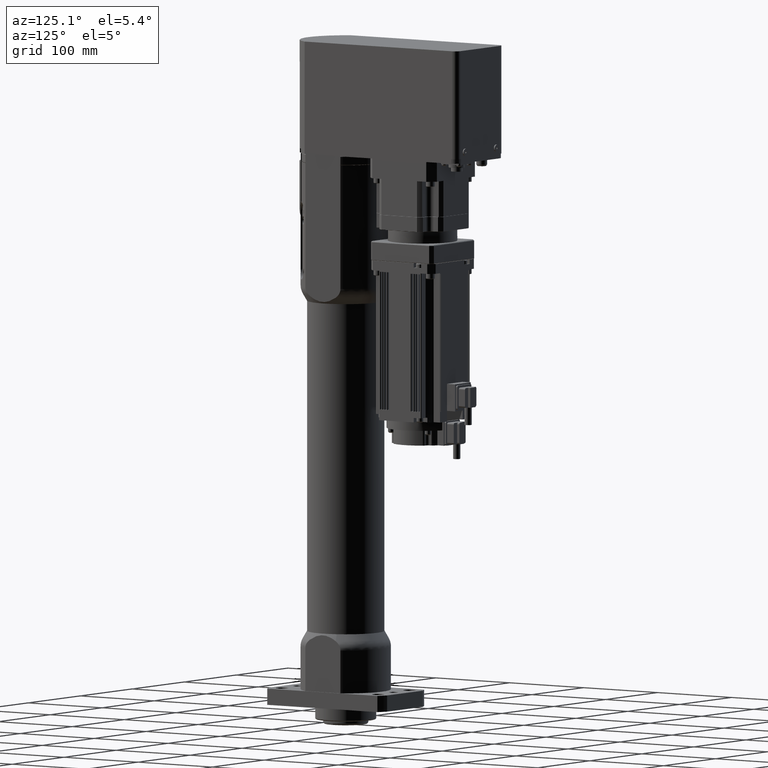
[diagram: clean part render]
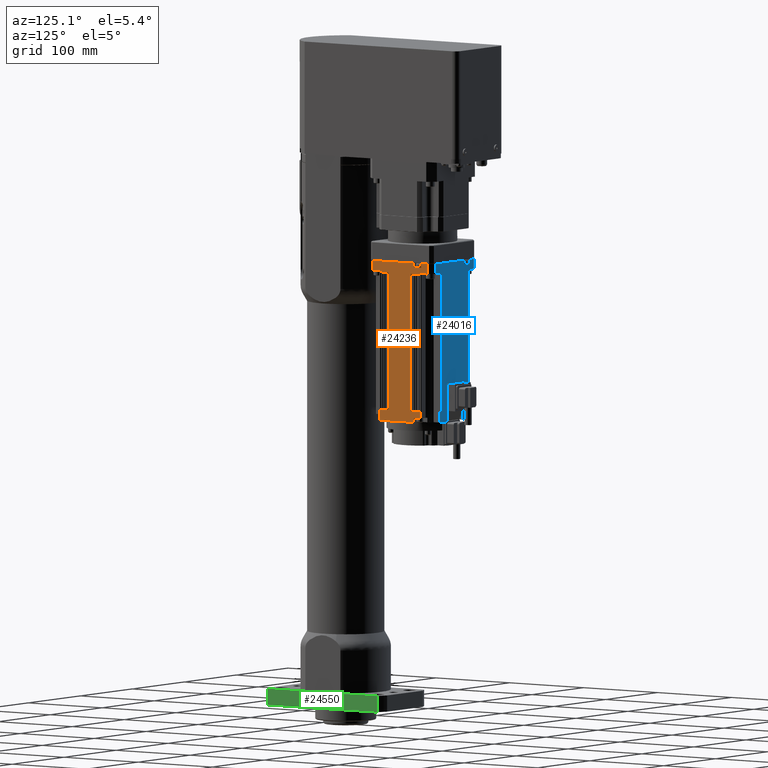
[diagram: same view with three faces highlighted in distinct colors, each labeled with its STEP entity id]
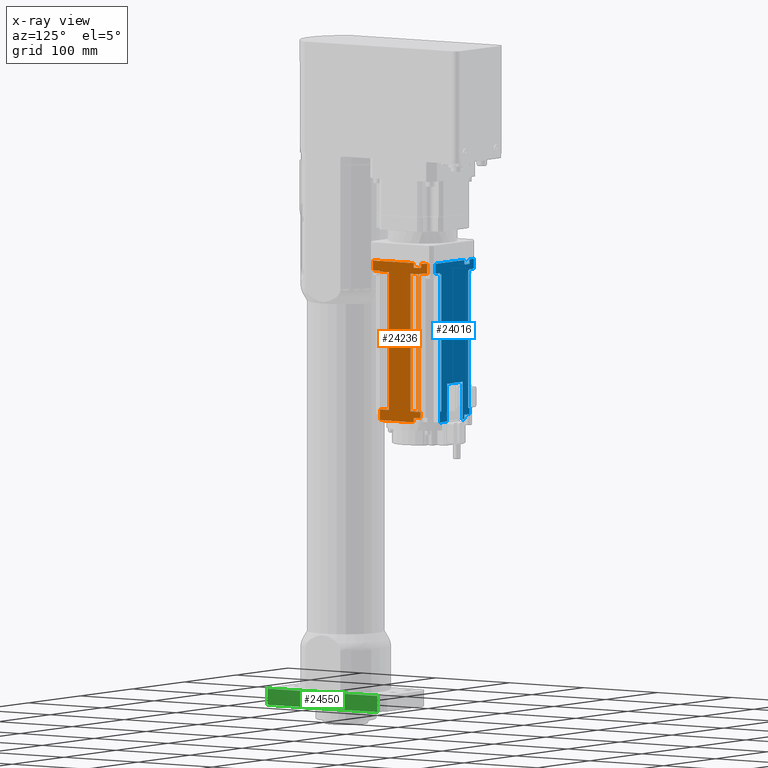
[diagram: x-ray of the same camera — body ghosted, the three highlighted faces saturated]
A machine part, auxiliary view with three faces highlighted in distinct colors.
The next image is the same camera in x-ray (body ghosted, the three faces saturated) — at least one of them is partly hidden behind the body in this view.
Their STEP definitions:

[orange] entity #24236 — the highlighted planar face has unit normal (1, -0, -0).
#915=LINE('',#36147,#2670);
#933=LINE('',#36230,#2688);
#1196=LINE('',#37584,#2951);
#1199=LINE('',#37592,#2954);
#1202=LINE('',#37601,#2957);
#1204=LINE('',#37607,#2959);
#1207=LINE('',#37612,#2962);
#1261=LINE('',#37738,#3016);
#1272=LINE('',#37766,#3027);
#1276=LINE('',#37774,#3031);
#1284=LINE('',#37793,#3039);
#1287=LINE('',#37806,#3042);
#1292=LINE('',#37822,#3047);
#1299=LINE('',#37838,#3054);
#1308=LINE('',#37860,#3063);
#1316=LINE('',#37877,#3071);
#1426=LINE('',#38163,#3181);
#1428=LINE('',#38170,#3183);
#1431=LINE('',#38179,#3186);
#1433=LINE('',#38188,#3188);
#1435=LINE('',#38194,#3190);
#1470=LINE('',#38312,#3225);
#1485=LINE('',#38367,#3240);
#1780=LINE('',#39332,#3535);
#1781=LINE('',#39335,#3536);
#1783=LINE('',#39339,#3538);
#1792=LINE('',#39362,#3547);
#1795=LINE('',#39371,#3550);
#1801=LINE('',#39385,#3556);
#1808=LINE('',#39406,#3563);
#1811=LINE('',#39412,#3566);
#1812=LINE('',#39414,#3567);
#1813=LINE('',#39415,#3568);
#1814=LINE('',#39416,#3569);
#1815=LINE('',#39418,#3570);
#1816=LINE('',#39419,#3571);
#2670=VECTOR('',#28651,10.);
#2688=VECTOR('',#28711,10.);
#2951=VECTOR('',#29900,10.);
#2954=VECTOR('',#29909,10.);
#2957=VECTOR('',#29916,10.);
#2959=VECTOR('',#29922,10.);
#2962=VECTOR('',#29927,10.);
#3016=VECTOR('',#30035,10.);
#3027=VECTOR('',#30056,10.);
#3031=VECTOR('',#30064,10.);
#3039=VECTOR('',#30078,10.);
#3042=VECTOR('',#30091,10.);
#3047=VECTOR('',#30104,10.);
#3054=VECTOR('',#30119,10.);
#3063=VECTOR('',#30138,10.);
#3071=VECTOR('',#30152,10.);
#3181=VECTOR('',#30386,10.);
#3183=VECTOR('',#30392,10.);
#3186=VECTOR('',#30401,10.);
#3188=VECTOR('',#30411,10.);
#3190=VECTOR('',#30417,10.);
#3225=VECTOR('',#30534,10.);
#3240=VECTOR('',#30587,10.);
#3535=VECTOR('',#31620,10.);
#3536=VECTOR('',#31623,10.);
#3538=VECTOR('',#31627,10.);
#3547=VECTOR('',#31658,10.);
#3550=VECTOR('',#31669,10.);
#3556=VECTOR('',#31689,10.);
#3563=VECTOR('',#31716,10.);
#3566=VECTOR('',#31725,10.);
#3567=VECTOR('',#31728,10.);
#3568=VECTOR('',#31729,10.);
#3569=VECTOR('',#31730,10.);
#3570=VECTOR('',#31731,10.);
#3571=VECTOR('',#31732,10.);
#4606=PLANE('',#26435);
#5085=FACE_BOUND('',#7620,.T.);
#6090=FACE_OUTER_BOUND('',#7619,.T.);
#7619=EDGE_LOOP('',(#18892,#18893,#18894,#18895,#18896,#18897,#18898,#18899,
#18900,#18901,#18902,#18903,#18904,#18905,#18906,#18907,#18908,#18909,#18910,
#18911,#18912,#18913,#18914,#18915,#18916,#18917,#18918,#18919));
#7620=EDGE_LOOP('',(#18920,#18921,#18922,#18923,#18924,#18925,#18926,#18927));
#10014=VERTEX_POINT('',#36144);
#10015=VERTEX_POINT('',#36146);
#10040=VERTEX_POINT('',#36227);
#10041=VERTEX_POINT('',#36229);
#10376=VERTEX_POINT('',#37582);
#10377=VERTEX_POINT('',#37587);
#10380=VERTEX_POINT('',#37595);
#10382=VERTEX_POINT('',#37599);
#10384=VERTEX_POINT('',#37606);
#10385=VERTEX_POINT('',#37610);
#10429=VERTEX_POINT('',#37736);
#10430=VERTEX_POINT('',#37737);
#10441=VERTEX_POINT('',#37764);
#10442=VERTEX_POINT('',#37765);
#10444=VERTEX_POINT('',#37772);
#10451=VERTEX_POINT('',#37791);
#10452=VERTEX_POINT('',#37792);
#10457=VERTEX_POINT('',#37804);
#10464=VERTEX_POINT('',#37821);
#10469=VERTEX_POINT('',#37837);
#10477=VERTEX_POINT('',#37859);
#10483=VERTEX_POINT('',#37875);
#10597=VERTEX_POINT('',#38161);
#10599=VERTEX_POINT('',#38167);
#10600=VERTEX_POINT('',#38169);
#10603=VERTEX_POINT('',#38178);
#10606=VERTEX_POINT('',#38187);
#10608=VERTEX_POINT('',#38193);
#10649=VERTEX_POINT('',#38309);
#10650=VERTEX_POINT('',#38311);
#10670=VERTEX_POINT('',#38364);
#10671=VERTEX_POINT('',#38366);
#10932=VERTEX_POINT('',#39330);
#10933=VERTEX_POINT('',#39334);
#10944=VERTEX_POINT('',#39404);
#10945=VERTEX_POINT('',#39417);
#12375=EDGE_CURVE('',#10014,#10015,#915,.T.);
#12409=EDGE_CURVE('',#10040,#10041,#933,.T.);
#12945=EDGE_CURVE('',#10376,#10040,#1196,.T.);
#12950=EDGE_CURVE('',#10377,#10015,#1199,.T.);
#12954=EDGE_CURVE('',#10380,#10382,#1202,.T.);
#12957=EDGE_CURVE('',#10384,#10380,#1204,.T.);
#12960=EDGE_CURVE('',#10382,#10385,#1207,.T.);
#13020=EDGE_CURVE('',#10429,#10430,#1261,.T.);
#13033=EDGE_CURVE('',#10441,#10442,#1272,.T.);
#13038=EDGE_CURVE('',#10444,#10442,#1276,.T.);
#13046=EDGE_CURVE('',#10451,#10452,#1284,.T.);
#13053=EDGE_CURVE('',#10452,#10457,#1287,.T.);
#13061=EDGE_CURVE('',#10451,#10464,#1292,.T.);
#13069=EDGE_CURVE('',#10469,#10429,#1299,.T.);
#13080=EDGE_CURVE('',#10457,#10477,#1308,.T.);
#13089=EDGE_CURVE('',#10477,#10483,#1316,.T.);
#13228=EDGE_CURVE('',#10597,#10483,#1426,.T.);
#13231=EDGE_CURVE('',#10599,#10600,#1428,.T.);
#13236=EDGE_CURVE('',#10600,#10603,#1431,.T.);
#13241=EDGE_CURVE('',#10603,#10606,#1433,.T.);
#13244=EDGE_CURVE('',#10444,#10608,#1435,.T.);
#13307=EDGE_CURVE('',#10649,#10650,#1470,.T.);
#13335=EDGE_CURVE('',#10671,#10670,#1485,.T.);
#13786=EDGE_CURVE('',#10671,#10932,#1780,.T.);
#13787=EDGE_CURVE('',#10932,#10933,#1781,.T.);
#13790=EDGE_CURVE('',#10464,#10014,#1783,.T.);
#13802=EDGE_CURVE('',#10933,#10649,#1792,.T.);
#13806=EDGE_CURVE('',#10650,#10597,#1795,.T.);
#13813=EDGE_CURVE('',#10430,#10599,#1801,.T.);
#13823=EDGE_CURVE('',#10944,#10469,#1808,.T.);
#13826=EDGE_CURVE('',#10606,#10944,#1811,.T.);
#13827=EDGE_CURVE('',#10041,#10441,#1812,.T.);
#13828=EDGE_CURVE('',#10376,#10384,#1813,.T.);
#13829=EDGE_CURVE('',#10385,#10377,#1814,.T.);
#13830=EDGE_CURVE('',#10670,#10945,#1815,.T.);
#13831=EDGE_CURVE('',#10608,#10945,#1816,.T.);
#18892=ORIENTED_EDGE('',*,*,#13244,.F.);
#18893=ORIENTED_EDGE('',*,*,#13038,.T.);
#18894=ORIENTED_EDGE('',*,*,#13033,.F.);
#18895=ORIENTED_EDGE('',*,*,#13827,.F.);
#18896=ORIENTED_EDGE('',*,*,#12409,.F.);
#18897=ORIENTED_EDGE('',*,*,#12945,.F.);
#18898=ORIENTED_EDGE('',*,*,#13828,.T.);
#18899=ORIENTED_EDGE('',*,*,#12957,.T.);
#18900=ORIENTED_EDGE('',*,*,#12954,.T.);
#18901=ORIENTED_EDGE('',*,*,#12960,.T.);
#18902=ORIENTED_EDGE('',*,*,#13829,.T.);
#18903=ORIENTED_EDGE('',*,*,#12950,.T.);
#18904=ORIENTED_EDGE('',*,*,#12375,.F.);
#18905=ORIENTED_EDGE('',*,*,#13790,.F.);
#18906=ORIENTED_EDGE('',*,*,#13061,.F.);
#18907=ORIENTED_EDGE('',*,*,#13046,.T.);
#18908=ORIENTED_EDGE('',*,*,#13053,.T.);
#18909=ORIENTED_EDGE('',*,*,#13080,.T.);
#18910=ORIENTED_EDGE('',*,*,#13089,.T.);
#18911=ORIENTED_EDGE('',*,*,#13228,.F.);
#18912=ORIENTED_EDGE('',*,*,#13806,.F.);
#18913=ORIENTED_EDGE('',*,*,#13307,.F.);
#18914=ORIENTED_EDGE('',*,*,#13802,.F.);
#18915=ORIENTED_EDGE('',*,*,#13787,.F.);
#18916=ORIENTED_EDGE('',*,*,#13786,.F.);
#18917=ORIENTED_EDGE('',*,*,#13335,.T.);
#18918=ORIENTED_EDGE('',*,*,#13830,.T.);
#18919=ORIENTED_EDGE('',*,*,#13831,.F.);
#18920=ORIENTED_EDGE('',*,*,#13241,.F.);
#18921=ORIENTED_EDGE('',*,*,#13236,.F.);
#18922=ORIENTED_EDGE('',*,*,#13231,.F.);
#18923=ORIENTED_EDGE('',*,*,#13813,.F.);
#18924=ORIENTED_EDGE('',*,*,#13020,.F.);
#18925=ORIENTED_EDGE('',*,*,#13069,.F.);
#18926=ORIENTED_EDGE('',*,*,#13823,.F.);
#18927=ORIENTED_EDGE('',*,*,#13826,.F.);
#24236=ADVANCED_FACE('',(#6090,#5085),#4606,.T.);
#26435=AXIS2_PLACEMENT_3D('',#39413,#31726,#31727);
#28651=DIRECTION('',(-3.96487638455236E-15,-1.,1.16659582020149E-14));
#28711=DIRECTION('',(-3.96487638455236E-15,-1.,1.16659582020149E-14));
#29900=DIRECTION('',(-1.83881657815785E-13,-1.16659582020141E-14,-1.));
#29909=DIRECTION('',(-1.83881657815785E-13,-1.16659582020141E-14,-1.));
#29916=DIRECTION('',(-3.96487638455236E-15,-1.,1.16659582020149E-14));
#29922=DIRECTION('',(-1.83881657815785E-13,-1.16659582020141E-14,-1.));
#29927=DIRECTION('',(1.83881657815785E-13,1.16659582020141E-14,1.));
#30035=DIRECTION('',(-3.96487638455236E-15,-1.,1.16659582020149E-14));
#30056=DIRECTION('',(-3.96487638455236E-15,-1.,1.16659582020149E-14));
#30064=DIRECTION('',(1.83881657815785E-13,1.18966538954427E-14,1.));
#30078=DIRECTION('',(3.96487638455236E-15,1.,-1.16659582020149E-14));
#30091=DIRECTION('',(3.96487638455236E-15,1.,-1.16659582020149E-14));
#30104=DIRECTION('',(-3.96487638455236E-15,-1.,1.16659582020149E-14));
#30119=DIRECTION('',(-3.96487638455236E-15,-1.,1.16659582020149E-14));
#30138=DIRECTION('',(3.96487638455236E-15,1.,-1.16659582020149E-14));
#30152=DIRECTION('',(-1.83881657815785E-13,-1.1406425546907E-14,-1.));
#30386=DIRECTION('',(3.96487638455236E-15,1.,-1.16659582020149E-14));
#30392=DIRECTION('',(3.96487638455236E-15,1.,-1.16659582020149E-14));
#30401=DIRECTION('',(3.96487638455236E-15,1.,-1.16659582020149E-14));
#30411=DIRECTION('',(3.96487638455236E-15,1.,-1.16659582020149E-14));
#30417=DIRECTION('',(3.96487638455236E-15,1.,-1.16659582020149E-14));
#30534=DIRECTION('',(3.96487638455236E-15,1.,-1.16659582020149E-14));
#30587=DIRECTION('',(1.83881657815785E-13,1.16659582020141E-14,1.));
#31620=DIRECTION('',(-4.10590053487842E-15,-1.,1.16659582020149E-14));
#31623=DIRECTION('',(1.83881657815785E-13,1.16659582020141E-14,1.));
#31627=DIRECTION('',(1.83881657815785E-13,1.16659582020141E-14,1.));
#31658=DIRECTION('',(3.96487638455236E-15,1.,-1.16659582020149E-14));
#31669=DIRECTION('',(3.96487638455236E-15,1.,-1.16659582020149E-14));
#31689=DIRECTION('',(-1.83881657815785E-13,-1.18966538954427E-14,-1.));
#31716=DIRECTION('',(-3.96487638455236E-15,-1.,1.16659582020149E-14));
#31725=DIRECTION('',(1.83881657815785E-13,1.18966538954427E-14,1.));
#31726=DIRECTION('center_axis',(1.,-3.96487638455451E-15,-1.83881657815785E-13));
#31727=DIRECTION('ref_axis',(-4.2632564145606E-15,-1.,1.13686837721616E-14));
#31728=DIRECTION('',(-1.83881657815785E-13,-1.16659582020141E-14,-1.));
#31729=DIRECTION('',(-3.96487638455236E-15,-1.,1.16659582020149E-14));
#31730=DIRECTION('',(-3.96487638455236E-15,-1.,1.16659582020149E-14));
#31731=DIRECTION('',(3.96487638455236E-15,1.,-1.16659582020149E-14));
#31732=DIRECTION('',(-1.83881657815785E-13,-1.16659582020141E-14,-1.));
#36144=CARTESIAN_POINT('',(43.5000000000818,76.5000000000073,490.499999999991));
#36146=CARTESIAN_POINT('',(43.5000000000818,67.1659125265813,490.499999999991));
#36147=CARTESIAN_POINT('',(43.500000000082,140.834087473433,490.49999999999));
#36227=CARTESIAN_POINT('',(43.500000000082,140.834087473433,490.49999999999));
#36229=CARTESIAN_POINT('',(43.500000000082,131.500000000007,490.49999999999));
#36230=CARTESIAN_POINT('',(43.500000000082,140.834087473433,490.49999999999));
#37582=CARTESIAN_POINT('',(43.5000000000841,140.834087473433,501.49999999999));
#37584=CARTESIAN_POINT('',(43.5000000000841,140.834087473433,501.49999999999));
#37587=CARTESIAN_POINT('',(43.5000000000838,67.1659125265815,501.499999999991));
#37592=CARTESIAN_POINT('',(43.5000000000838,67.1659125265815,501.499999999991));
#37595=CARTESIAN_POINT('',(43.5000000000831,132.500000000007,496.49999999999));
#37599=CARTESIAN_POINT('',(43.5000000000831,122.500000000007,496.49999999999));
#37601=CARTESIAN_POINT('',(43.5000000000831,134.16704373672,496.49999999999));
#37606=CARTESIAN_POINT('',(43.500000000084,132.500000000007,501.49999999999));
#37607=CARTESIAN_POINT('',(43.500000000084,132.500000000007,501.49999999999));
#37610=CARTESIAN_POINT('',(43.500000000084,122.500000000007,501.49999999999));
#37612=CARTESIAN_POINT('',(43.500000000084,122.500000000007,501.49999999999));
#37736=CARTESIAN_POINT('',(43.5000000000818,122.000000000007,489.499999999991));
#37737=CARTESIAN_POINT('',(43.5000000000818,118.000000000007,489.499999999991));
#37738=CARTESIAN_POINT('',(43.5000000000818,129.91704373672,489.49999999999));
#37764=CARTESIAN_POINT('',(43.5000000000818,131.500000000007,489.49999999999));
#37765=CARTESIAN_POINT('',(43.5000000000818,129.000000000007,489.49999999999));
#37766=CARTESIAN_POINT('',(43.5000000000818,134.91704373672,489.49999999999));
#37772=CARTESIAN_POINT('',(43.5000000000537,129.000000000005,336.49999999999));
#37774=CARTESIAN_POINT('',(43.5000000000688,129.000000000006,418.49999999999));
#37791=CARTESIAN_POINT('',(43.5000000000816,79.5000000000074,489.499999999991));
#37792=CARTESIAN_POINT('',(43.5000000000816,82.5000000000074,489.499999999991));
#37793=CARTESIAN_POINT('',(43.5000000000817,110.66704373672,489.499999999991));
#37804=CARTESIAN_POINT('',(43.5000000000817,86.0000000000074,489.499999999991));
#37806=CARTESIAN_POINT('',(43.5000000000818,112.16704373672,489.499999999991));
#37821=CARTESIAN_POINT('',(43.5000000000816,76.5000000000074,489.499999999991));
#37822=CARTESIAN_POINT('',(43.5000000000817,109.16704373672,489.499999999991));
#37837=CARTESIAN_POINT('',(43.5000000000818,125.000000000007,489.499999999991));
#37838=CARTESIAN_POINT('',(43.5000000000818,131.91704373672,489.49999999999));
#37859=CARTESIAN_POINT('',(43.5000000000817,89.0000000000073,489.499999999991));
#37860=CARTESIAN_POINT('',(43.5000000000818,113.91704373672,489.499999999991));
#37875=CARTESIAN_POINT('',(43.5000000000535,89.0000000000056,336.499999999991));
#37877=CARTESIAN_POINT('',(43.5000000000828,89.0000000000074,495.499999999991));
#38161=CARTESIAN_POINT('',(43.5000000000535,86.0000000000056,336.499999999991));
#38163=CARTESIAN_POINT('',(43.5000000000536,117.387025464173,336.499999999991));
#38167=CARTESIAN_POINT('',(43.5000000000536,118.000000000005,336.499999999991));
#38169=CARTESIAN_POINT('',(43.5000000000537,122.000000000005,336.499999999991));
#38170=CARTESIAN_POINT('',(43.5000000000536,117.387025464173,336.499999999991));
#38178=CARTESIAN_POINT('',(43.5000000000537,125.000000000005,336.499999999991));
#38179=CARTESIAN_POINT('',(43.5000000000536,117.387025464173,336.499999999991));
#38187=CARTESIAN_POINT('',(43.5000000000537,128.500000000005,336.499999999991));
#38188=CARTESIAN_POINT('',(43.5000000000536,117.387025464173,336.499999999991));
#38193=CARTESIAN_POINT('',(43.5000000000537,131.500000000005,336.499999999991));
#38194=CARTESIAN_POINT('',(43.5000000000536,117.387025464173,336.499999999991));
#38309=CARTESIAN_POINT('',(43.5000000000535,79.5000000000056,336.499999999991));
#38311=CARTESIAN_POINT('',(43.5000000000535,82.5000000000056,336.499999999991));
#38312=CARTESIAN_POINT('',(43.5000000000536,117.387025464173,336.499999999991));
#38364=CARTESIAN_POINT('',(43.5000000000524,122.500000000005,329.499999999991));
#38366=CARTESIAN_POINT('',(43.5000000000514,122.500000000005,324.499999999991));
#38367=CARTESIAN_POINT('',(43.5000000000677,122.500000000006,412.999999999991));
#39330=CARTESIAN_POINT('',(43.5000000000513,76.5000000000054,324.499999999991));
#39332=CARTESIAN_POINT('',(43.5000000000515,132.500000000005,324.49999999999));
#39334=CARTESIAN_POINT('',(43.5000000000535,76.5000000000056,336.499999999991));
#39335=CARTESIAN_POINT('',(43.5000000000828,76.5000000000074,495.999999999991));
#39339=CARTESIAN_POINT('',(43.5000000000828,76.5000000000074,495.999999999991));
#39362=CARTESIAN_POINT('',(43.5000000000536,117.387025464173,336.499999999991));
#39371=CARTESIAN_POINT('',(43.5000000000536,117.387025464173,336.499999999991));
#39385=CARTESIAN_POINT('',(43.5000000000687,118.000000000006,418.499999999991));
#39404=CARTESIAN_POINT('',(43.5000000000818,128.500000000007,489.49999999999));
#39406=CARTESIAN_POINT('',(43.5000000000818,133.41704373672,489.49999999999));
#39412=CARTESIAN_POINT('',(43.5000000000829,128.500000000007,495.49999999999));
#39413=CARTESIAN_POINT('Origin',(43.5000000000841,140.834087473433,501.49999999999));
#39414=CARTESIAN_POINT('',(43.500000000083,131.500000000007,495.99999999999));
#39415=CARTESIAN_POINT('',(43.5000000000841,140.834087473433,501.49999999999));
#39416=CARTESIAN_POINT('',(43.5000000000841,140.834087473433,501.49999999999));
#39417=CARTESIAN_POINT('',(43.5000000000524,131.500000000005,329.49999999999));
#39418=CARTESIAN_POINT('',(43.5000000000524,134.300260534887,329.49999999999));
#39419=CARTESIAN_POINT('',(43.500000000083,131.500000000007,495.99999999999));

[blue] entity #24016 — the highlighted planar face has unit normal (0, 1, -0).
#932=LINE('',#36226,#2687);
#1194=LINE('',#37575,#2949);
#1197=LINE('',#37585,#2952);
#1220=LINE('',#37645,#2975);
#1222=LINE('',#37651,#2977);
#1225=LINE('',#37656,#2980);
#1509=LINE('',#38419,#3264);
#1513=LINE('',#38427,#3268);
#1521=LINE('',#38444,#3276);
#1524=LINE('',#38449,#3279);
#1525=LINE('',#38452,#3280);
#1527=LINE('',#38455,#3282);
#1528=LINE('',#38461,#3283);
#1531=LINE('',#38466,#3286);
#1545=LINE('',#38557,#3300);
#1546=LINE('',#38559,#3301);
#1547=LINE('',#38560,#3302);
#1548=LINE('',#38561,#3303);
#1549=LINE('',#38562,#3304);
#1550=LINE('',#38563,#3305);
#1551=LINE('',#38566,#3306);
#1552=LINE('',#38568,#3307);
#1553=LINE('',#38570,#3308);
#1554=LINE('',#38571,#3309);
#1555=LINE('',#38574,#3310);
#1556=LINE('',#38576,#3311);
#1557=LINE('',#38578,#3312);
#1558=LINE('',#38579,#3313);
#2687=VECTOR('',#28708,10.);
#2949=VECTOR('',#29890,10.);
#2952=VECTOR('',#29901,10.);
#2975=VECTOR('',#29958,10.);
#2977=VECTOR('',#29964,10.);
#2980=VECTOR('',#29969,10.);
#3264=VECTOR('',#30629,10.);
#3268=VECTOR('',#30635,10.);
#3276=VECTOR('',#30647,10.);
#3279=VECTOR('',#30652,10.);
#3280=VECTOR('',#30655,10.);
#3282=VECTOR('',#30659,10.);
#3283=VECTOR('',#30666,10.);
#3286=VECTOR('',#30671,10.);
#3300=VECTOR('',#30773,10.);
#3301=VECTOR('',#30774,10.);
#3302=VECTOR('',#30775,10.);
#3303=VECTOR('',#30776,10.);
#3304=VECTOR('',#30777,10.);
#3305=VECTOR('',#30778,10.);
#3306=VECTOR('',#30779,10.);
#3307=VECTOR('',#30780,10.);
#3308=VECTOR('',#30781,10.);
#3309=VECTOR('',#30782,10.);
#3310=VECTOR('',#30783,10.);
#3311=VECTOR('',#30784,10.);
#3312=VECTOR('',#30785,10.);
#3313=VECTOR('',#30786,10.);
#4499=PLANE('',#26091);
#5052=FACE_BOUND('',#7367,.T.);
#5053=FACE_BOUND('',#7368,.T.);
#5870=FACE_OUTER_BOUND('',#7366,.T.);
#7366=EDGE_LOOP('',(#17823,#17824,#17825,#17826,#17827,#17828,#17829,#17830,
#17831,#17832,#17833,#17834,#17835,#17836,#17837,#17838,#17839,#17840,#17841,
#17842));
#7367=EDGE_LOOP('',(#17843,#17844,#17845,#17846));
#7368=EDGE_LOOP('',(#17847,#17848,#17849,#17850));
#10038=VERTEX_POINT('',#36223);
#10039=VERTEX_POINT('',#36225);
#10372=VERTEX_POINT('',#37572);
#10373=VERTEX_POINT('',#37574);
#10375=VERTEX_POINT('',#37580);
#10394=VERTEX_POINT('',#37639);
#10396=VERTEX_POINT('',#37643);
#10398=VERTEX_POINT('',#37650);
#10399=VERTEX_POINT('',#37654);
#10689=VERTEX_POINT('',#38416);
#10690=VERTEX_POINT('',#38418);
#10692=VERTEX_POINT('',#38424);
#10693=VERTEX_POINT('',#38426);
#10694=VERTEX_POINT('',#38430);
#10699=VERTEX_POINT('',#38439);
#10700=VERTEX_POINT('',#38443);
#10701=VERTEX_POINT('',#38447);
#10702=VERTEX_POINT('',#38451);
#10738=VERTEX_POINT('',#38556);
#10739=VERTEX_POINT('',#38558);
#10740=VERTEX_POINT('',#38564);
#10741=VERTEX_POINT('',#38565);
#10742=VERTEX_POINT('',#38567);
#10743=VERTEX_POINT('',#38569);
#10744=VERTEX_POINT('',#38572);
#10745=VERTEX_POINT('',#38573);
#10746=VERTEX_POINT('',#38575);
#10747=VERTEX_POINT('',#38577);
#12407=EDGE_CURVE('',#10038,#10039,#932,.T.);
#12940=EDGE_CURVE('',#10372,#10373,#1194,.T.);
#12946=EDGE_CURVE('',#10375,#10039,#1197,.T.);
#12976=EDGE_CURVE('',#10394,#10396,#1220,.T.);
#12979=EDGE_CURVE('',#10398,#10394,#1222,.T.);
#12982=EDGE_CURVE('',#10396,#10399,#1225,.T.);
#13361=EDGE_CURVE('',#10689,#10690,#1509,.T.);
#13365=EDGE_CURVE('',#10692,#10693,#1513,.T.);
#13373=EDGE_CURVE('',#10038,#10700,#1521,.T.);
#13376=EDGE_CURVE('',#10699,#10701,#1524,.T.);
#13377=EDGE_CURVE('',#10702,#10694,#1525,.T.);
#13379=EDGE_CURVE('',#10693,#10689,#1527,.T.);
#13382=EDGE_CURVE('',#10690,#10701,#1528,.T.);
#13385=EDGE_CURVE('',#10702,#10700,#1531,.T.);
#13432=EDGE_CURVE('',#10694,#10738,#1545,.T.);
#13433=EDGE_CURVE('',#10738,#10739,#1546,.T.);
#13434=EDGE_CURVE('',#10739,#10699,#1547,.T.);
#13435=EDGE_CURVE('',#10373,#10692,#1548,.T.);
#13436=EDGE_CURVE('',#10372,#10398,#1549,.T.);
#13437=EDGE_CURVE('',#10399,#10375,#1550,.T.);
#13438=EDGE_CURVE('',#10740,#10741,#1551,.T.);
#13439=EDGE_CURVE('',#10742,#10741,#1552,.T.);
#13440=EDGE_CURVE('',#10743,#10742,#1553,.T.);
#13441=EDGE_CURVE('',#10740,#10743,#1554,.T.);
#13442=EDGE_CURVE('',#10744,#10745,#1555,.T.);
#13443=EDGE_CURVE('',#10746,#10745,#1556,.T.);
#13444=EDGE_CURVE('',#10747,#10746,#1557,.T.);
#13445=EDGE_CURVE('',#10744,#10747,#1558,.T.);
#17823=ORIENTED_EDGE('',*,*,#13432,.T.);
#17824=ORIENTED_EDGE('',*,*,#13433,.T.);
#17825=ORIENTED_EDGE('',*,*,#13434,.T.);
#17826=ORIENTED_EDGE('',*,*,#13376,.T.);
#17827=ORIENTED_EDGE('',*,*,#13382,.F.);
#17828=ORIENTED_EDGE('',*,*,#13361,.F.);
#17829=ORIENTED_EDGE('',*,*,#13379,.F.);
#17830=ORIENTED_EDGE('',*,*,#13365,.F.);
#17831=ORIENTED_EDGE('',*,*,#13435,.F.);
#17832=ORIENTED_EDGE('',*,*,#12940,.F.);
#17833=ORIENTED_EDGE('',*,*,#13436,.T.);
#17834=ORIENTED_EDGE('',*,*,#12979,.T.);
#17835=ORIENTED_EDGE('',*,*,#12976,.T.);
#17836=ORIENTED_EDGE('',*,*,#12982,.T.);
#17837=ORIENTED_EDGE('',*,*,#13437,.T.);
#17838=ORIENTED_EDGE('',*,*,#12946,.T.);
#17839=ORIENTED_EDGE('',*,*,#12407,.F.);
#17840=ORIENTED_EDGE('',*,*,#13373,.T.);
#17841=ORIENTED_EDGE('',*,*,#13385,.F.);
#17842=ORIENTED_EDGE('',*,*,#13377,.T.);
#17843=ORIENTED_EDGE('',*,*,#13438,.T.);
#17844=ORIENTED_EDGE('',*,*,#13439,.F.);
#17845=ORIENTED_EDGE('',*,*,#13440,.F.);
#17846=ORIENTED_EDGE('',*,*,#13441,.F.);
#17847=ORIENTED_EDGE('',*,*,#13442,.T.);
#17848=ORIENTED_EDGE('',*,*,#13443,.F.);
#17849=ORIENTED_EDGE('',*,*,#13444,.F.);
#17850=ORIENTED_EDGE('',*,*,#13445,.F.);
#24016=ADVANCED_FACE('',(#5870,#5052,#5053),#4499,.T.);
#26091=AXIS2_PLACEMENT_3D('',#38555,#30771,#30772);
#28708=DIRECTION('',(1.,-3.72374690894556E-15,-1.83881657815785E-13));
#29890=DIRECTION('',(-1.83881657815785E-13,-1.16659582020141E-14,-1.));
#29901=DIRECTION('',(-1.83881657815785E-13,-1.16659582020141E-14,-1.));
#29958=DIRECTION('',(1.,-3.72374690894556E-15,-1.83881657815785E-13));
#29964=DIRECTION('',(-1.83881657815785E-13,-1.16659582020141E-14,-1.));
#29969=DIRECTION('',(1.83881657815785E-13,1.16659582020141E-14,1.));
#30629=DIRECTION('',(-1.83881657815785E-13,-1.16659582020141E-14,-1.));
#30635=DIRECTION('',(-1.83881657815785E-13,-1.16659582020141E-14,-1.));
#30647=DIRECTION('',(-1.83881657815785E-13,-1.16659582020141E-14,-1.));
#30652=DIRECTION('',(-1.83881657815785E-13,-1.16659582020141E-14,-1.));
#30655=DIRECTION('',(1.83881657815785E-13,1.16659582020141E-14,1.));
#30659=DIRECTION('',(1.,-4.37079585303674E-15,-1.83881657815785E-13));
#30666=DIRECTION('',(1.,1.59268782209267E-15,-1.83881657815785E-13));
#30671=DIRECTION('',(1.,-4.07473637980337E-15,-1.83881657815785E-13));
#30771=DIRECTION('center_axis',(3.72374690894342E-15,1.,-1.16659582020148E-14));
#30772=DIRECTION('ref_axis',(1.,-2.8421709430404E-15,-1.81898940354586E-13));
#30773=DIRECTION('',(1.83881657815785E-13,1.16659582020141E-14,1.));
#30774=DIRECTION('',(-1.,3.72374690894557E-15,1.84473776762252E-13));
#30775=DIRECTION('',(-1.83881657815785E-13,-1.16659582020141E-14,-1.));
#30776=DIRECTION('',(1.,-3.72374690894556E-15,-1.83881657815785E-13));
#30777=DIRECTION('',(1.,-3.72374690894556E-15,-1.83881657815785E-13));
#30778=DIRECTION('',(1.,-3.72374690894556E-15,-1.83881657815785E-13));
#30779=DIRECTION('',(-1.,3.72374690894556E-15,1.83881657815785E-13));
#30780=DIRECTION('',(1.39690427619921E-13,1.16659582020143E-14,1.));
#30781=DIRECTION('',(-1.,3.72374690894556E-15,1.83881657815785E-13));
#30782=DIRECTION('',(-2.3232511475956E-13,-1.1665958202014E-14,-1.));
#30783=DIRECTION('',(1.,-3.72374690894556E-15,-1.83881657815785E-13));
#30784=DIRECTION('',(-2.28348629677896E-13,-1.1665958202014E-14,-1.));
#30785=DIRECTION('',(1.,-3.72374690894556E-15,-1.83881657815785E-13));
#30786=DIRECTION('',(1.35699429818981E-13,1.16659582020143E-14,1.));
#36223=CARTESIAN_POINT('',(28.5000000000821,147.500000000007,490.499999999993));
#36225=CARTESIAN_POINT('',(36.834087473508,147.500000000007,490.499999999991));
#36226=CARTESIAN_POINT('',(-36.834087473344,147.500000000008,490.500000000005));
#37572=CARTESIAN_POINT('',(-36.8340874733419,147.500000000008,501.500000000005));
#37574=CARTESIAN_POINT('',(-36.834087473344,147.500000000008,490.500000000005));
#37575=CARTESIAN_POINT('',(-36.8340874733419,147.500000000008,501.500000000005));
#37580=CARTESIAN_POINT('',(36.8340874735101,147.500000000008,501.499999999991));
#37585=CARTESIAN_POINT('',(36.8340874735101,147.500000000008,501.499999999991));
#37639=CARTESIAN_POINT('',(-28.4999999999169,147.500000000008,496.500000000003));
#37643=CARTESIAN_POINT('',(-18.4999999999169,147.500000000008,496.500000000002));
#37645=CARTESIAN_POINT('',(-30.1670437366299,147.500000000008,496.500000000004));
#37650=CARTESIAN_POINT('',(-28.4999999999159,147.500000000008,501.500000000003));
#37651=CARTESIAN_POINT('',(-28.4999999999159,147.500000000008,501.500000000003));
#37654=CARTESIAN_POINT('',(-18.4999999999159,147.500000000008,501.500000000002));
#37656=CARTESIAN_POINT('',(-18.4999999999159,147.500000000008,501.500000000002));
#38416=CARTESIAN_POINT('',(-18.4999999999476,147.500000000006,329.500000000002));
#38418=CARTESIAN_POINT('',(-18.4999999999485,147.500000000006,324.500000000002));
#38419=CARTESIAN_POINT('',(-18.4999999999463,147.500000000006,336.500000000002));
#38424=CARTESIAN_POINT('',(-28.499999999918,147.500000000008,490.500000000003));
#38426=CARTESIAN_POINT('',(-28.4999999999476,147.500000000006,329.500000000003));
#38427=CARTESIAN_POINT('',(-28.4999999999463,147.500000000006,336.500000000003));
#38430=CARTESIAN_POINT('',(15.0000000000537,147.500000000006,336.499999999996));
#38439=CARTESIAN_POINT('',(-14.9999999999463,147.500000000006,336.500000000001));
#38443=CARTESIAN_POINT('',(28.5000000000515,147.500000000006,324.499999999993));
#38444=CARTESIAN_POINT('',(28.5000000000821,147.500000000007,490.499999999993));
#38447=CARTESIAN_POINT('',(-14.9999999999485,147.500000000006,324.500000000001));
#38449=CARTESIAN_POINT('',(-14.9999999999463,147.500000000006,336.500000000001));
#38451=CARTESIAN_POINT('',(15.0000000000515,147.500000000006,324.499999999995));
#38452=CARTESIAN_POINT('',(15.0000000000537,147.500000000006,336.499999999996));
#38455=CARTESIAN_POINT('',(-28.4999999999476,147.500000000006,329.500000000003));
#38461=CARTESIAN_POINT('',(-18.4999999999485,147.500000000006,324.500000000002));
#38466=CARTESIAN_POINT('',(-14.9999999999485,147.500000000006,324.500000000001));
#38555=CARTESIAN_POINT('Origin',(-36.8340874733419,147.500000000008,501.500000000005));
#38556=CARTESIAN_POINT('',(15.0000000000592,147.500000000006,366.499999999995));
#38557=CARTESIAN_POINT('',(15.0000000000716,147.500000000007,433.999999999995));
#38558=CARTESIAN_POINT('',(-14.9999999999408,147.500000000006,366.500000000001));
#38559=CARTESIAN_POINT('',(-25.9170437366538,147.500000000006,366.500000000003));
#38560=CARTESIAN_POINT('',(-14.9999999999311,147.500000000007,419.000000000001));
#38561=CARTESIAN_POINT('',(-36.834087473344,147.500000000008,490.500000000005));
#38562=CARTESIAN_POINT('',(-36.8340874733419,147.500000000008,501.500000000005));
#38563=CARTESIAN_POINT('',(-36.8340874733419,147.500000000008,501.500000000005));
#38564=CARTESIAN_POINT('',(-25.9999999999099,147.500000000008,489.500000000003));
#38565=CARTESIAN_POINT('',(-27.9999999999318,147.500000000008,489.500000000003));
#38566=CARTESIAN_POINT('',(-31.667043736627,147.500000000008,489.500000000004));
#38567=CARTESIAN_POINT('',(-27.9999999999532,147.500000000006,336.500000000003));
#38568=CARTESIAN_POINT('',(-27.9999999999309,147.500000000008,495.500000000004));
#38569=CARTESIAN_POINT('',(-25.9999999999454,147.500000000006,336.500000000003));
#38570=CARTESIAN_POINT('',(-32.1670437366627,147.500000000006,336.500000000004));
#38571=CARTESIAN_POINT('',(-25.9999999999262,147.500000000007,419.000000000003));
#38572=CARTESIAN_POINT('',(26.0000000000528,147.500000000006,336.499999999993));
#38573=CARTESIAN_POINT('',(28.0000000000606,147.500000000006,336.499999999993));
#38574=CARTESIAN_POINT('',(-5.16704373665973,147.500000000006,336.499999999999));
#38575=CARTESIAN_POINT('',(28.0000000000955,147.500000000007,489.499999999993));
#38576=CARTESIAN_POINT('',(28.0000000000794,147.500000000007,418.999999999992));
#38577=CARTESIAN_POINT('',(26.0000000000736,147.500000000007,489.499999999993));
#38578=CARTESIAN_POINT('',(-4.66704373662432,147.500000000008,489.499999999999));
#38579=CARTESIAN_POINT('',(26.0000000000744,147.500000000008,495.499999999995));

[green] entity #24550 — the highlighted planar face has unit normal (1, -0, 0).
#2210=LINE('',#41632,#3965);
#2214=LINE('',#41672,#3969);
#2215=LINE('',#41676,#3970);
#2216=LINE('',#41677,#3971);
#3965=VECTOR('',#33242,10.);
#3969=VECTOR('',#33282,10.);
#3970=VECTOR('',#33287,10.);
#3971=VECTOR('',#33288,10.);
#4816=PLANE('',#27013);
#6404=FACE_OUTER_BOUND('',#8005,.T.);
#8005=EDGE_LOOP('',(#20514,#20515,#20516,#20517));
#11447=VERTEX_POINT('',#41629);
#11448=VERTEX_POINT('',#41631);
#11466=VERTEX_POINT('',#41671);
#11467=VERTEX_POINT('',#41675);
#14591=EDGE_CURVE('',#11448,#11447,#2210,.T.);
#14611=EDGE_CURVE('',#11448,#11466,#2214,.T.);
#14613=EDGE_CURVE('',#11447,#11467,#2215,.T.);
#14614=EDGE_CURVE('',#11466,#11467,#2216,.T.);
#20514=ORIENTED_EDGE('',*,*,#14591,.T.);
#20515=ORIENTED_EDGE('',*,*,#14613,.T.);
#20516=ORIENTED_EDGE('',*,*,#14614,.F.);
#20517=ORIENTED_EDGE('',*,*,#14611,.F.);
#24550=ADVANCED_FACE('',(#6404),#4816,.T.);
#27013=AXIS2_PLACEMENT_3D('',#41674,#33285,#33286);
#33242=DIRECTION('',(2.77555756156289E-16,1.,-1.08685479551489E-31));
#33282=DIRECTION('',(8.32667268468869E-17,8.55743202188421E-32,1.));
#33285=DIRECTION('center_axis',(1.,-2.77555756156289E-16,-8.32667268468869E-17));
#33286=DIRECTION('ref_axis',(0.,1.,-7.88860905221012E-32));
#33287=DIRECTION('',(8.32667268468869E-17,8.55743202188421E-32,1.));
#33288=DIRECTION('',(2.77555756156289E-16,1.,-1.08685479551489E-31));
#41629=CARTESIAN_POINT('',(45.0000000000029,74.4580418759451,-3.74700270811016E-15));
#41631=CARTESIAN_POINT('',(45.0000000000028,-74.4580418759452,-3.74700270811014E-15));
#41632=CARTESIAN_POINT('',(45.0000000000028,-74.4580418759452,-3.74700270811014E-15));
#41671=CARTESIAN_POINT('',(45.0000000000028,-74.4580418759452,18.));
#41672=CARTESIAN_POINT('',(45.0000000000028,-74.4580418759452,-3.74700270811014E-15));
#41674=CARTESIAN_POINT('Origin',(45.0000000000028,-74.4580418759452,-3.74700270811014E-15));
#41675=CARTESIAN_POINT('',(45.0000000000029,74.4580418759451,18.));
#41676=CARTESIAN_POINT('',(45.0000000000029,74.4580418759451,-3.74700270811016E-15));
#41677=CARTESIAN_POINT('',(45.0000000000028,-74.4580418759452,18.));